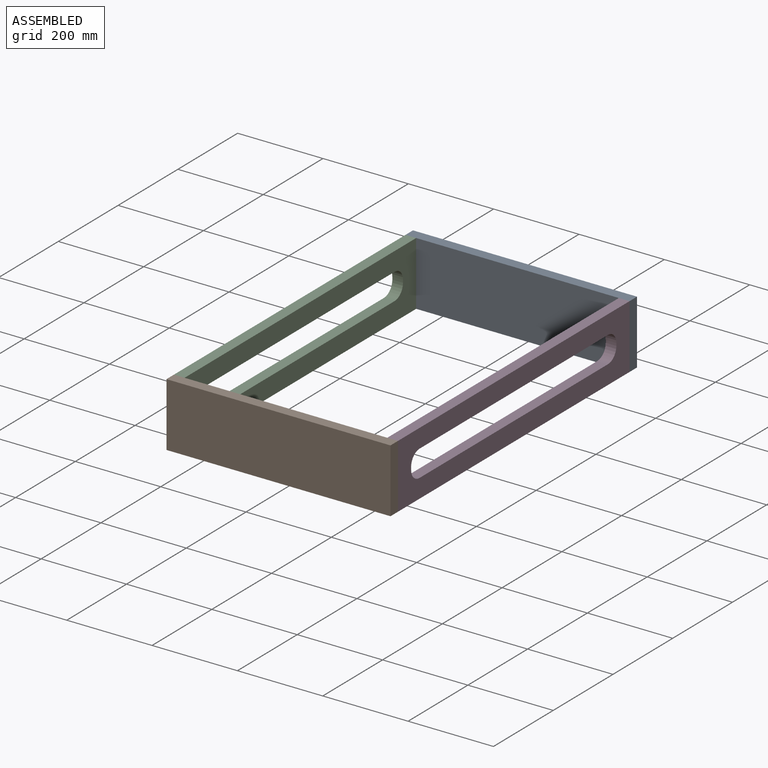
[diagram: assembled view]
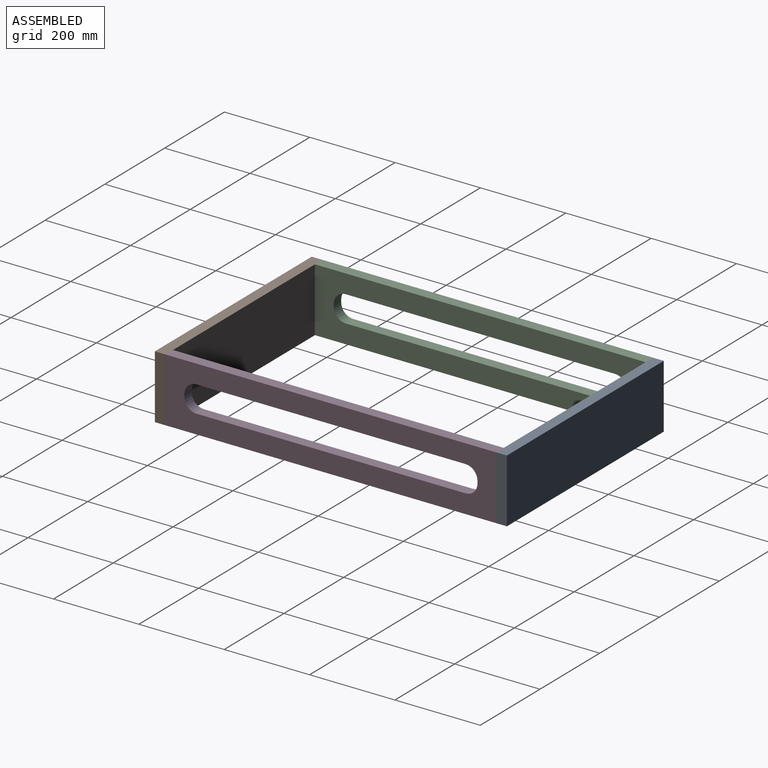
[diagram: assembled view, second angle]
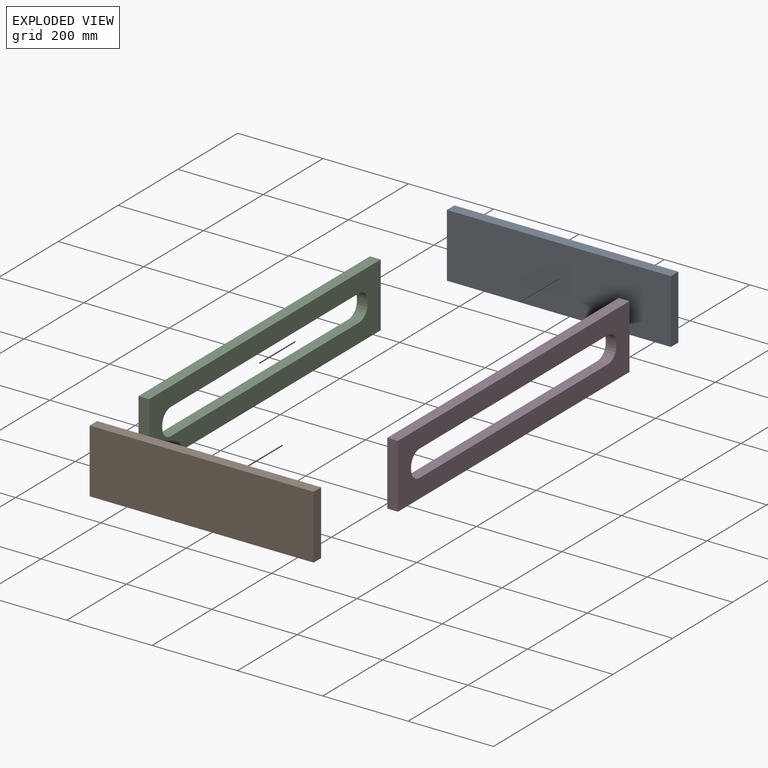
[diagram: exploded view]
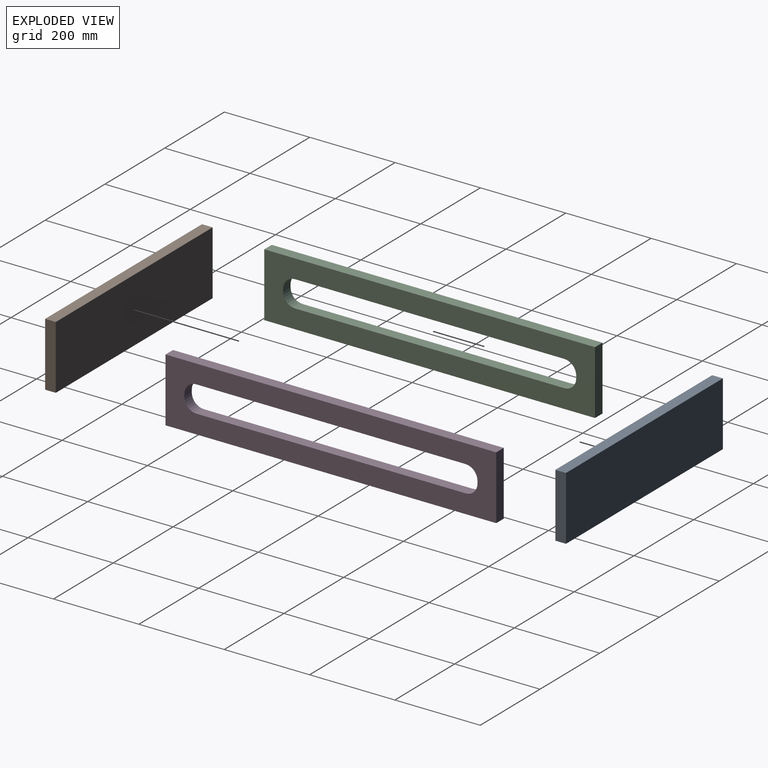
[diagram: exploded view, second angle]
ASSEMBLY  parts=4 mates=3
PART A: 6 faces, bbox 525x25x150 mm
  f0: plane 525x25mm, normal (0,0,1), area 13125mm2, adj f1,f3,f4,f5
  f1: plane 150x25mm, normal (-1,0,0), area 3750mm2, adj f0,f2,f4,f5
  f2: plane 525x25mm, normal (0,0,-1), area 13125mm2, adj f1,f3,f4,f5
  f3: plane 150x25mm, normal (1,0,0), area 3750mm2, adj f0,f2,f4,f5
  f4: plane 525x150mm, normal (0,-1,0), area 78750mm2, adj f0,f1,f2,f3
  f5: plane 525x150mm, normal (0,1,0), area 78750mm2, adj f0,f1,f2,f3
PART B: same geometry as A
PART C: 14 faces, bbox 775x25x150 mm
  f0: plane 775x25mm, normal (0,0,1), area 19375mm2, adj f1,f11,f12,f13
  f1: plane 150x25mm, normal (-1,0,0), area 3750mm2, adj f0,f2,f12,f13
  f2: plane 775x25mm, normal (0,0,-1), area 19375mm2, adj f1,f11,f12,f13
  f3: cylinder r=28mm len=28mm, axis (0,-1,0), area 1099.6mm2, adj f4,f10,f12,f13
  f4: plane 25x6mm, normal (-1,0,0), area 150mm2, adj f3,f5,f12,f13
  f5: cylinder r=28mm len=28mm, axis (0,-1,0), area 1099.6mm2, adj f4,f6,f12,f13
  f6: plane 631x25mm, normal (0,0,1), area 15775mm2, adj f5,f7,f12,f13
  f7: cylinder r=28mm len=28mm, axis (0,-1,0), area 1099.6mm2, adj f6,f8,f12,f13
  f8: plane 25x6mm, normal (1,0,0), area 150mm2, adj f7,f9,f12,f13
  f9: cylinder r=28mm len=28mm, axis (0,-1,0), area 1099.6mm2, adj f8,f10,f12,f13
  f10: plane 631x25mm, normal (0,0,-1), area 15775mm2, adj f3,f9,f12,f13
  f11: plane 150x25mm, normal (1,0,0), area 3750mm2, adj f0,f2,f12,f13
  f12: plane 775x150mm, normal (0,1,0), area 74329mm2, adj f0,f1,f2,f3,f4,f5,f6,f7
  f13: plane 775x150mm, normal (0,-1,0), area 74329mm2, adj f0,f1,f2,f3,f4,f5,f6,f7
PART D: same geometry as C
PLACE A t=(-605.85,-257.92,26.04)mm
PLACE B rot(axis=(1,0,0),180deg) t=(-605.85,-1082.92,26.04)mm
PLACE C rot(axis=(0.71,-0.71,0),180deg) t=(-843.35,-670.42,26.04)mm
PLACE D rot(axis=(0,0,-1),90deg) t=(-368.35,-670.42,26.04)mm
MATE fastened D.f1 <-> A.f4  axis (0,1,0) through (-343.35,-282.92,101.04)mm
MATE fastened B.f4 <-> D.f11  axis (0,1,0) through (-343.35,-1057.92,101.04)mm
MATE fastened C.f1 <-> A.f4  axis (0,1,0) through (-868.35,-282.92,101.04)mm
